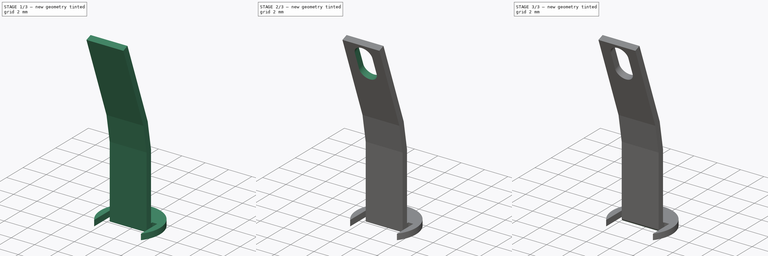
[diagram: build sequence overview — one tinted view per stage of 3, left to right]
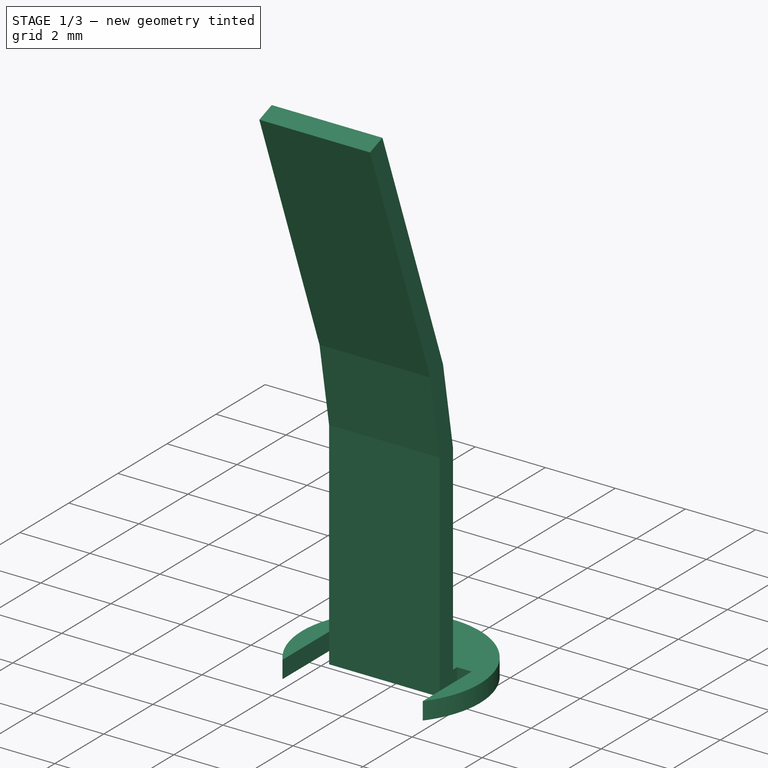
[diagram: stage 1 of 3 — iso view after this stage's code; geometry added in this stage tinted green]
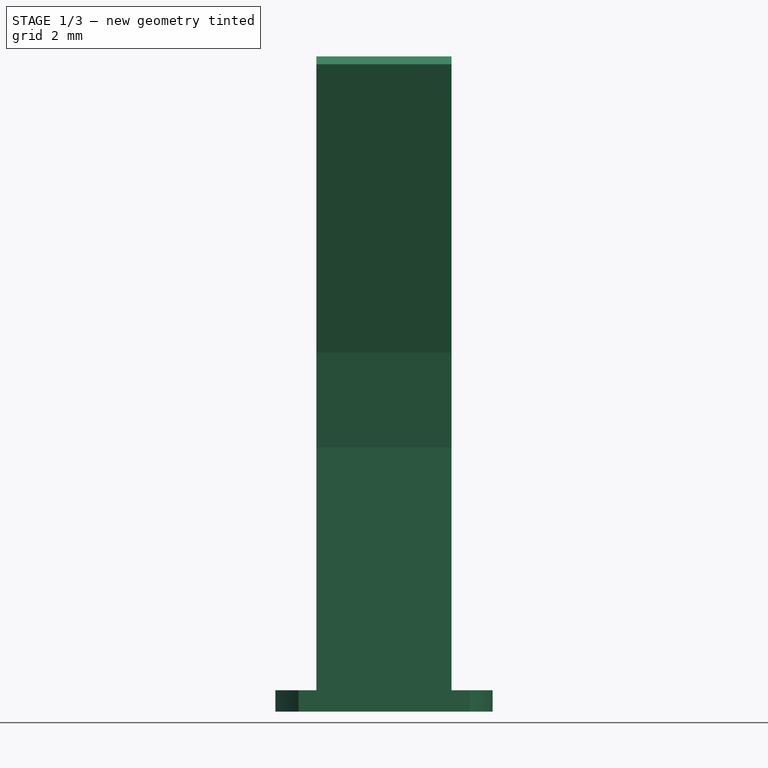
[diagram: stage 1 of 3 — front view after this stage's code; geometry added in this stage tinted green]
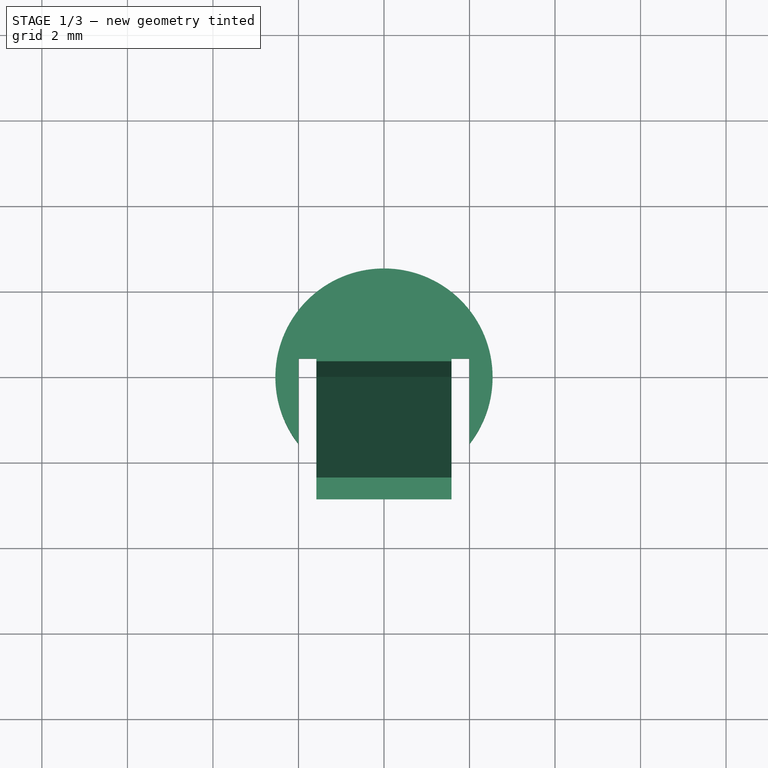
[diagram: stage 1 of 3 — top view after this stage's code; geometry added in this stage tinted green]
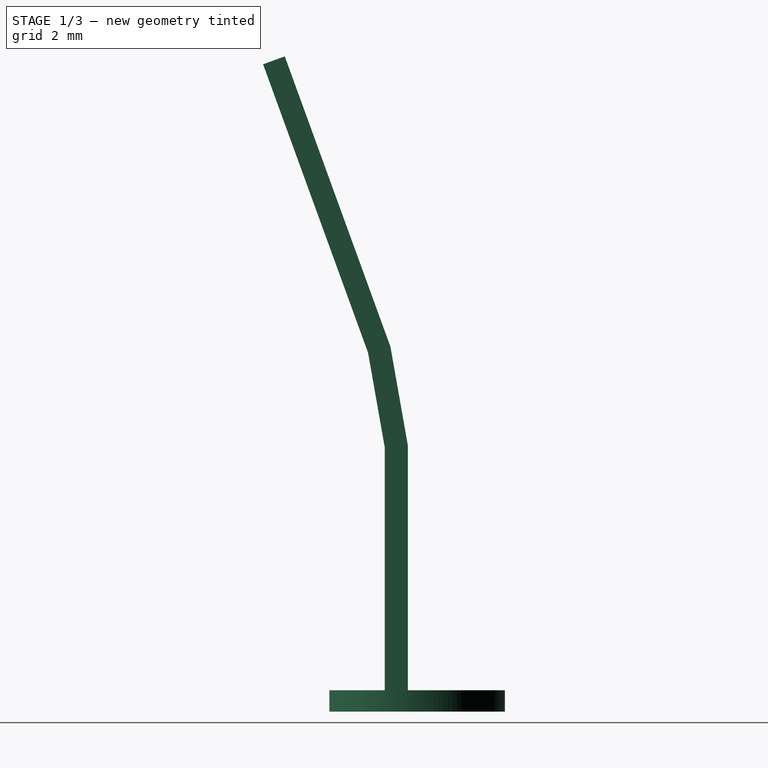
[diagram: stage 1 of 3 — right view after this stage's code; geometry added in this stage tinted green]
FCSTD DOCUMENT  (FreeCAD 0.15R4671 (Git))
Label: PF15_sprat
License: All rights reserved
LicenseURL: http://en.wikipedia.org/wiki/All_rights_reserved
objects: Sketcher::SketchObject×4, PartDesign::Pocket×2, Part::Fillet×2, Part::Sweep×1, Part::Cylinder×1, Part::MultiFuse×1, Part::MultiCommon×1
note: 14 computed .brp shape members not serialized (recipe doc carries the construction recipe); baked Part::Feature solids carry a one-line shape summary decoded from their .brp

FEATURE [Sketcher::SketchObject] Sketch
  Placement = pos=(0,0,0) rot=(0.57735,0.57735,0.57735;2.0944rad)
  sketch-geometry (3):
    g0: LineSegment StartX=0 StartY=0 StartZ=0 EndX=0 EndY=6.2 EndZ=0
    g1: LineSegment StartX=0 StartY=6.2 StartZ=0 EndX=-0.399391 EndY=8.46506 EndZ=0
    g2: LineSegment StartX=-0.399391 StartY=8.46506 StartZ=0 EndX=-2.86194 EndY=15.2308 EndZ=0
  constraints (9):
    c: Coincident(g0,g-1)
    c: Vertical(g0)
    c: Coincident(g1,g0)
    c: Coincident(g2,g1)
    c: Angle(g1,g0) = 2.96706
    c: Angle(g2,g1) = 2.96706
    c: DistanceY(g0) = 6.2
    c: Distance(g2) = 7.2
    c: Distance(g1) = 2.3
FEATURE [Sketcher::SketchObject] Sketch001  label="Sketch_xy"
  sketch-geometry (4):
    g0: LineSegment StartX=-1.58 StartY=0.27 StartZ=0 EndX=1.58 EndY=0.27 EndZ=0
    g1: LineSegment StartX=1.58 StartY=0.27 StartZ=0 EndX=1.58 EndY=-0.27 EndZ=0
    g2: LineSegment StartX=1.58 StartY=-0.27 StartZ=0 EndX=-1.58 EndY=-0.27 EndZ=0
    g3: LineSegment StartX=-1.58 StartY=-0.27 StartZ=0 EndX=-1.58 EndY=0.27 EndZ=0
  constraints (12):
    c: Coincident(g0,g1)
    c: Coincident(g1,g2)
    c: Coincident(g2,g3)
    c: Coincident(g3,g0)
    c: Horizontal(g0)
    c: Horizontal(g2)
    c: Vertical(g1)
    c: Vertical(g3)
    c: Symmetric(g0,g0,g-2)
    c: Symmetric(g1,g0,g-1)
    c: DistanceY(g1) = -0.54
    c: DistanceX(g0) = 3.16
FEATURE [Part::Sweep] Sweep
  Frenet = true
  Sections = -> [Sketch001]
  Solid = true
  Spine = -> Sketch
  Transition = 1
FEATURE [Part::Cylinder] Cylinder
  Angle = 360
  Height = 0.5
  Radius = 2.54
FEATURE [Sketcher::SketchObject] Sketch002
  ExternalGeometry = -> [Cylinder]
  Placement = pos=(0,0,0.5) rot=(0,0,1;0rad)
  Support = -> Cylinder [Face2]
  sketch-geometry (8):
    g0: LineSegment StartX=-2 StartY=-1.56576 StartZ=0 EndX=-2 EndY=0.434241 EndZ=0
    g1: LineSegment StartX=-2 StartY=0.434241 StartZ=0 EndX=-1.58 EndY=0.434241 EndZ=0
    g2: LineSegment StartX=-1.58 StartY=0.434241 StartZ=0 EndX=-1.58 EndY=-0.25 EndZ=0
    g3: LineSegment StartX=-1.58 StartY=-0.25 StartZ=0 EndX=1.58 EndY=-0.25 EndZ=0
    g4: LineSegment StartX=1.58 StartY=-0.25 StartZ=0 EndX=1.58 EndY=0.434241 EndZ=0
    g5: LineSegment StartX=1.58 StartY=0.434241 StartZ=0 EndX=2 EndY=0.434241 EndZ=0
    g6: LineSegment StartX=2 StartY=0.434241 StartZ=0 EndX=2 EndY=-1.56576 EndZ=0
    g7: ArcOfCircle CenterX=0 CenterY=0 CenterZ=0 NormalX=0 NormalY=0 NormalZ=1 Radius=2.54 StartAngle=3.80581 EndAngle=5.61897
  constraints (25):
    c: PointOnObject(g0,g-3)
    c: Vertical(g0)
    c: Coincident(g0,g1)
    c: Horizontal(g1)
    c: Coincident(g1,g2)
    c: Vertical(g2)
    c: Coincident(g2,g3)
    c: Horizontal(g3)
    c: Coincident(g3,g4)
    c: Vertical(g4)
    c: Coincident(g4,g5)
    c: Horizontal(g5)
    c: Coincident(g5,g6)
    c: PointOnObject(g6,g-3)
    c: Vertical(g6)
    c: Coincident(g7,g-1)
    c: Coincident(g7,g6)
    c: Coincident(g7,g0)
    c: Symmetric(g2,g3,g-2)
    c: Equal(g2,g4)
    c: Equal(g1,g5)
    c: DistanceX(g3) = 3.16
    c: DistanceX(g0,g6) = 4
    c: DistanceY(g6) = -2
    c: DistanceY(g-1,g3) = -0.25
FEATURE [PartDesign::Pocket] Pocket
  Length = 5
  Sketch = -> Sketch002
  Type = 0
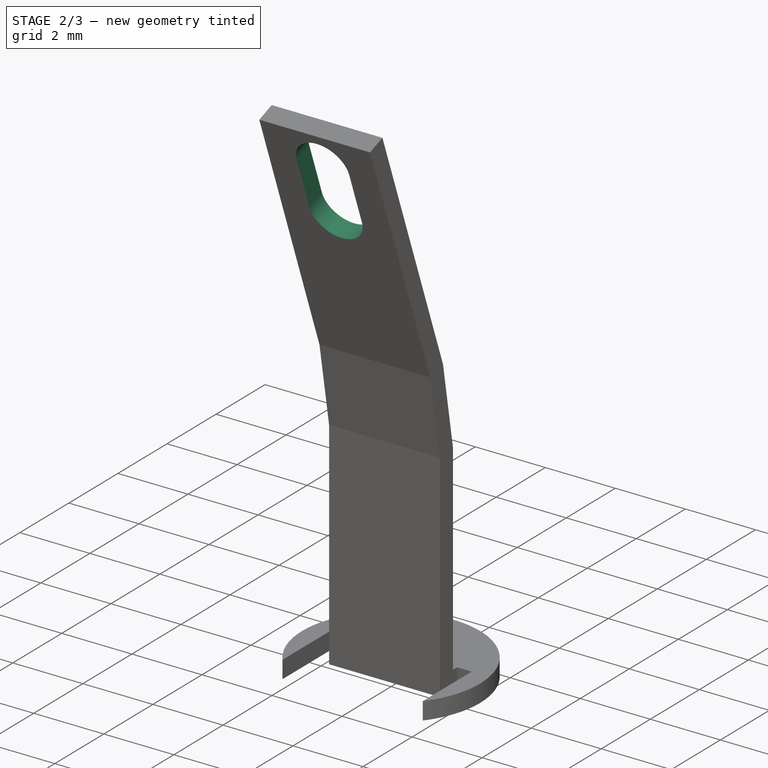
[diagram: stage 2 of 3 — iso view after this stage's code; geometry added in this stage tinted green]
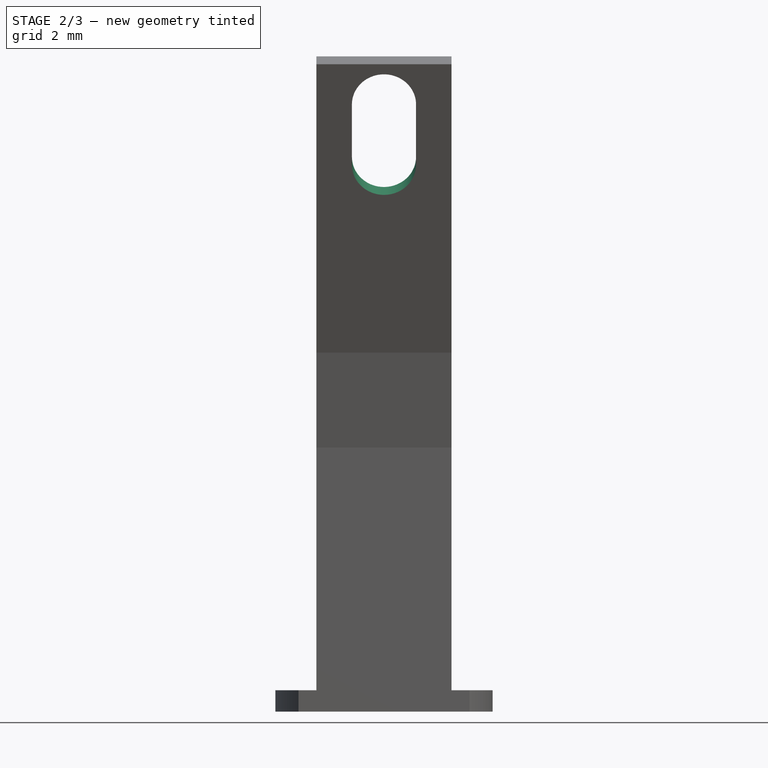
[diagram: stage 2 of 3 — front view after this stage's code; geometry added in this stage tinted green]
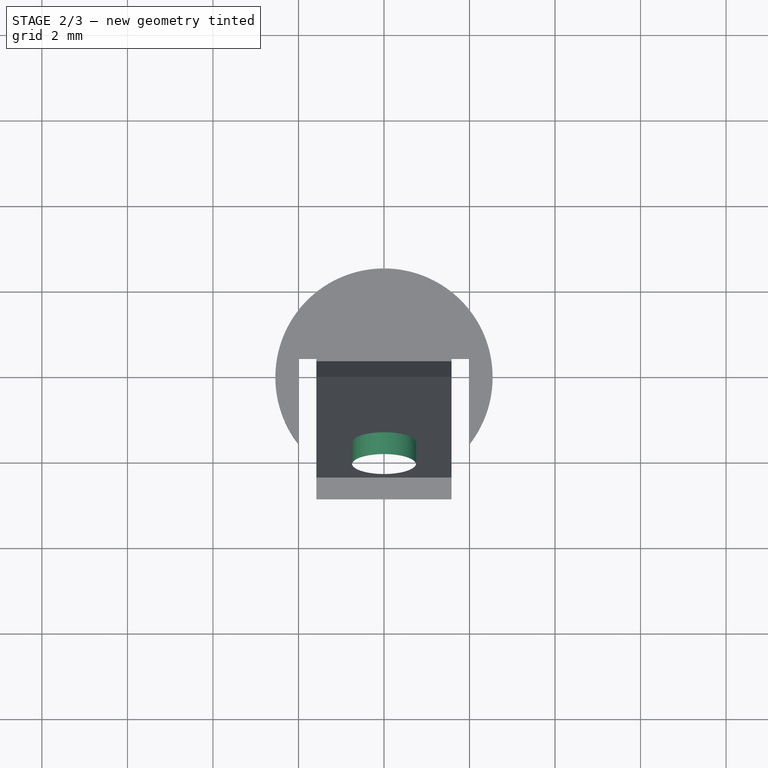
[diagram: stage 2 of 3 — top view after this stage's code; geometry added in this stage tinted green]
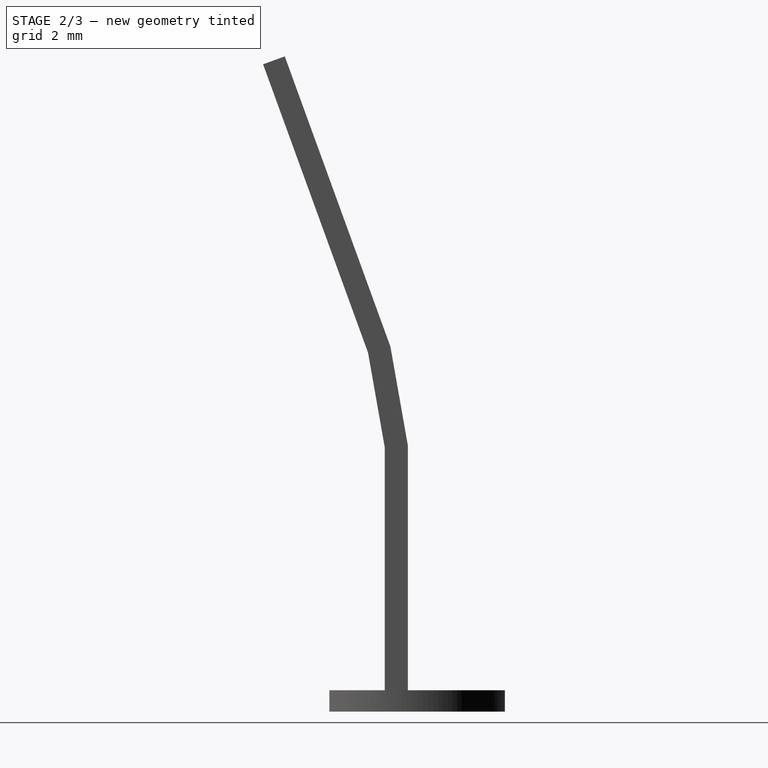
[diagram: stage 2 of 3 — right view after this stage's code; geometry added in this stage tinted green]
FEATURE [Part::MultiFuse] Fusion
  Shapes = -> [Pocket,Sweep]
FEATURE [Sketcher::SketchObject] Sketch003
  ExternalGeometry = -> [Fusion]
  Placement = pos=(0,2.62166,0.954207) rot=(0,0.573576,0.819152;3.14159rad)
  Support = -> Fusion [Face12]
  sketch-geometry (4):
    g0: ArcOfCircle CenterX=0 CenterY=14.2912 CenterZ=0 NormalX=0 NormalY=0 NormalZ=1 Radius=0.75 StartAngle=0 EndAngle=3.14159
    g1: ArcOfCircle CenterX=0 CenterY=12.7912 CenterZ=0 NormalX=0 NormalY=0 NormalZ=1 Radius=0.75 StartAngle=3.14159 EndAngle=6.28319
    g2: LineSegment StartX=-0.75 StartY=14.2912 StartZ=0 EndX=-0.75 EndY=12.7912 EndZ=0
    g3: LineSegment StartX=0.75 StartY=14.2912 StartZ=0 EndX=0.75 EndY=12.7912 EndZ=0
  constraints (10):
    c: Tangent(g0,g3) = 1.5708
    c: Tangent(g0,g2) = -1.5708
    c: Tangent(g2,g1) = -1.5708
    c: Tangent(g3,g1) = 1.5708
    c: Vertical(g2)
    c: Equal(g0,g1)
    c: PointOnObject(g0,g-2)
    c: DistanceX(g0,g0) = 1.5
    c: DistanceY(g3) = -1.5
    c: DistanceY(g0,g-3) = 1
FEATURE [PartDesign::Pocket] Pocket001
  Length = 5
  Sketch = -> Sketch003
  Type = 0
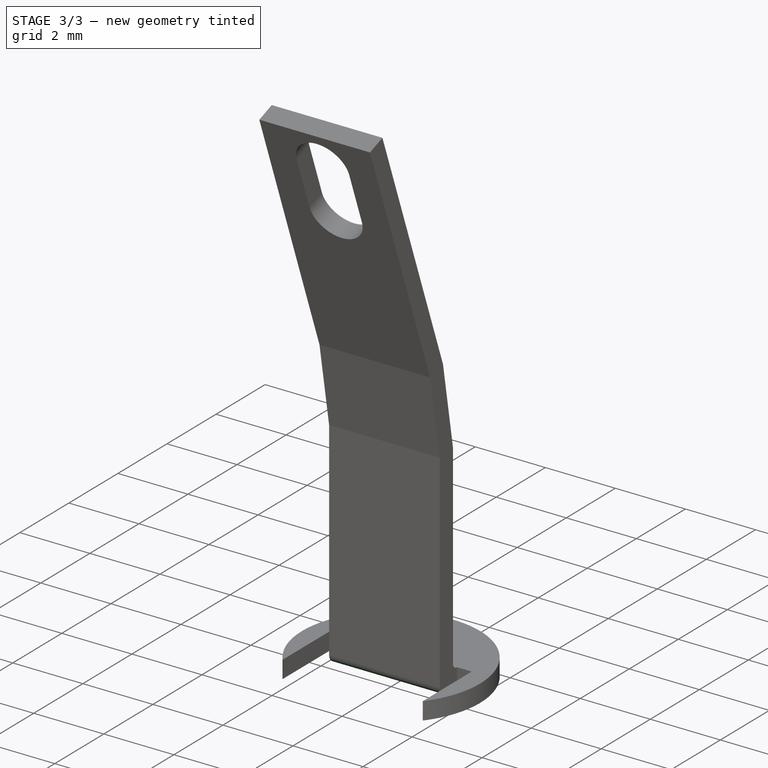
[diagram: stage 3 of 3 — iso view after this stage's code; geometry added in this stage tinted green]
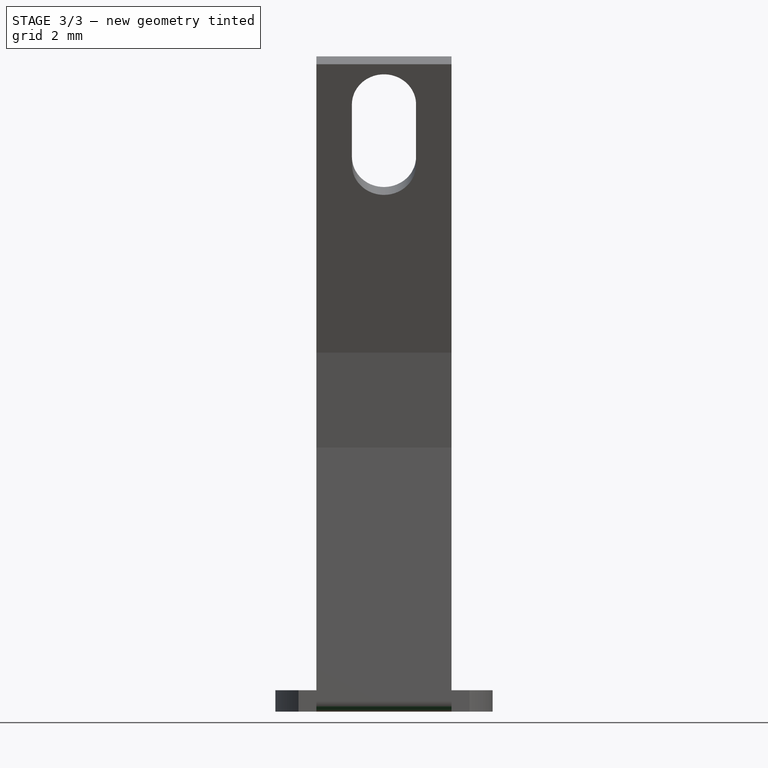
[diagram: stage 3 of 3 — front view after this stage's code; geometry added in this stage tinted green]
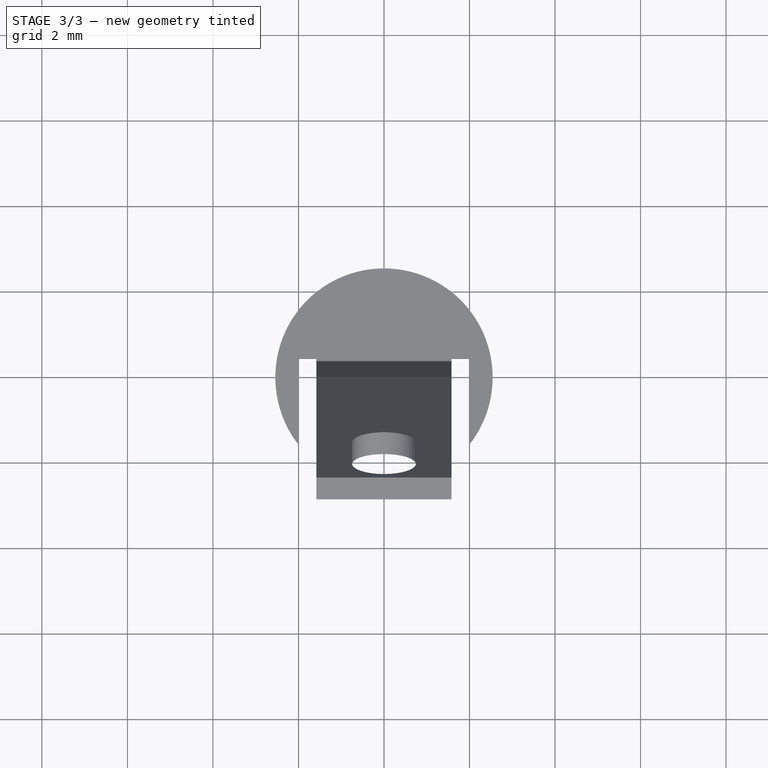
[diagram: stage 3 of 3 — top view after this stage's code; geometry added in this stage tinted green]
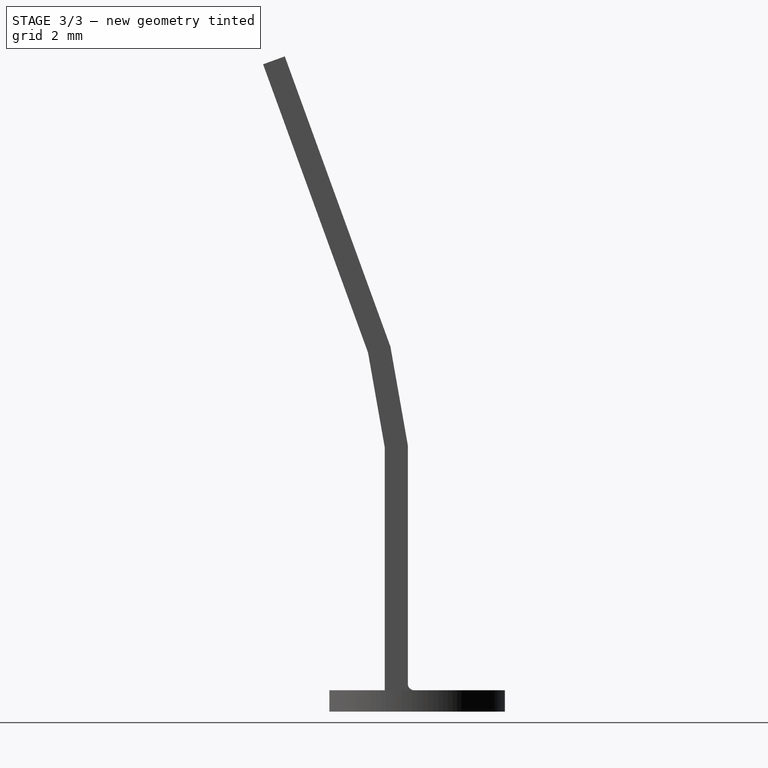
[diagram: stage 3 of 3 — right view after this stage's code; geometry added in this stage tinted green]
FEATURE [Part::MultiCommon] Common
  Shapes = -> [Pocket001,Fusion]
FEATURE [Part::Fillet] Fillet
  Base = -> Common
  Edges = 1 edges r=0.15: [Edge38]
FEATURE [Part::Fillet] Fillet001
  Base = -> Fillet
  Edges = 1 edges r=0.25: [Edge33]
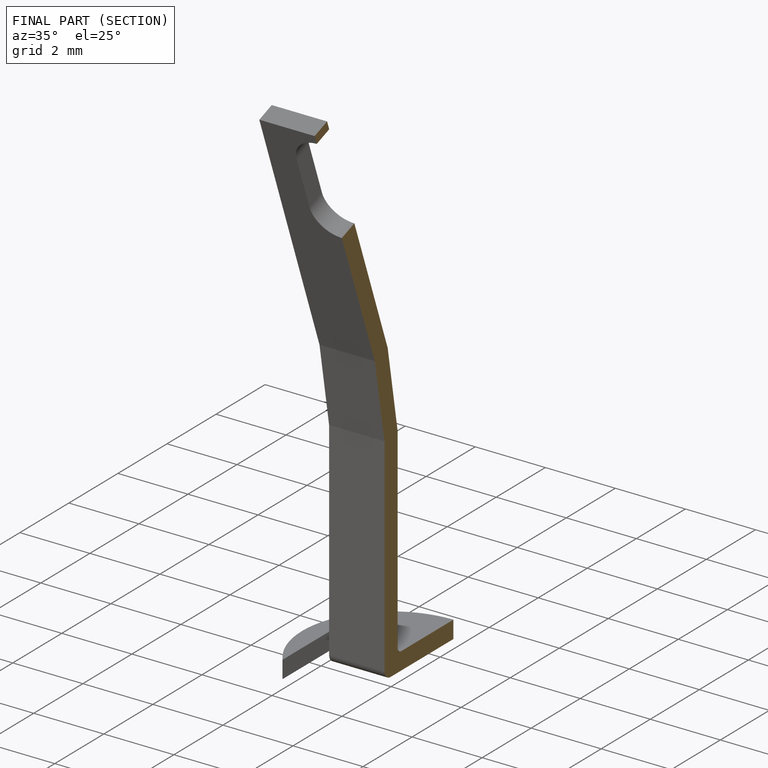
[diagram: finished part — half-section view (interior)]
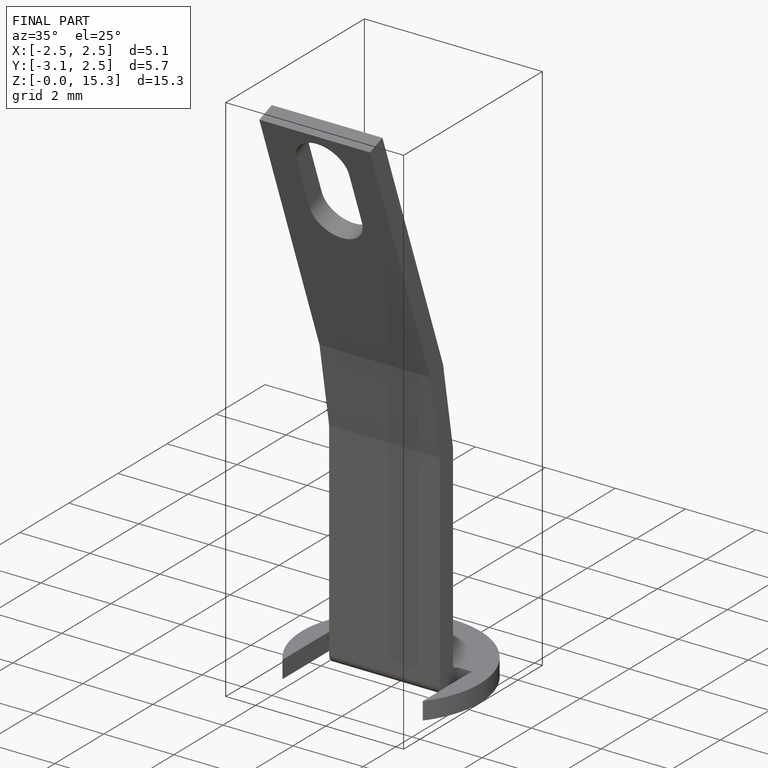
[diagram: finished part — iso view with bounding-box wireframe]
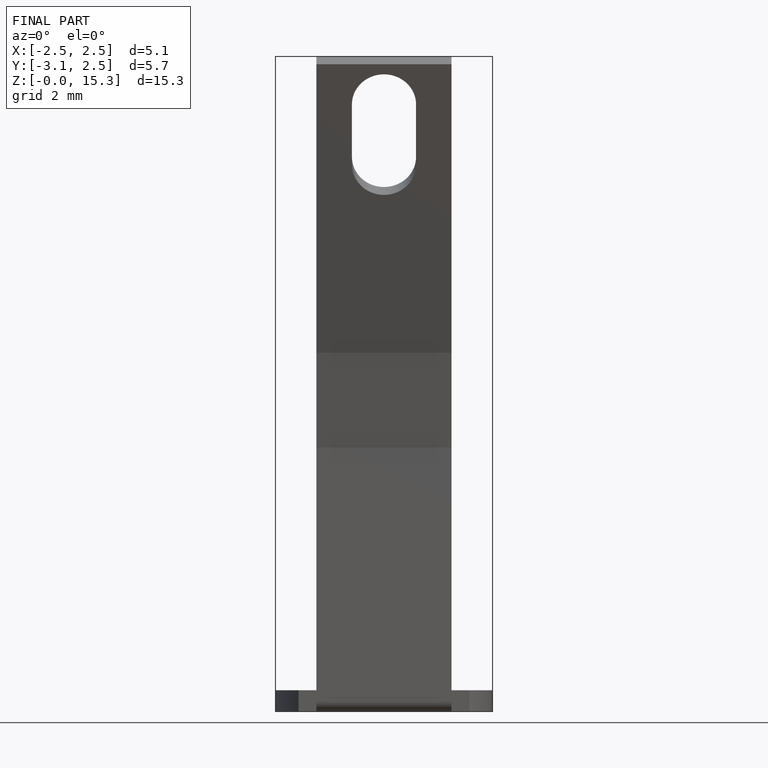
[diagram: finished part — front view with bounding-box wireframe]
